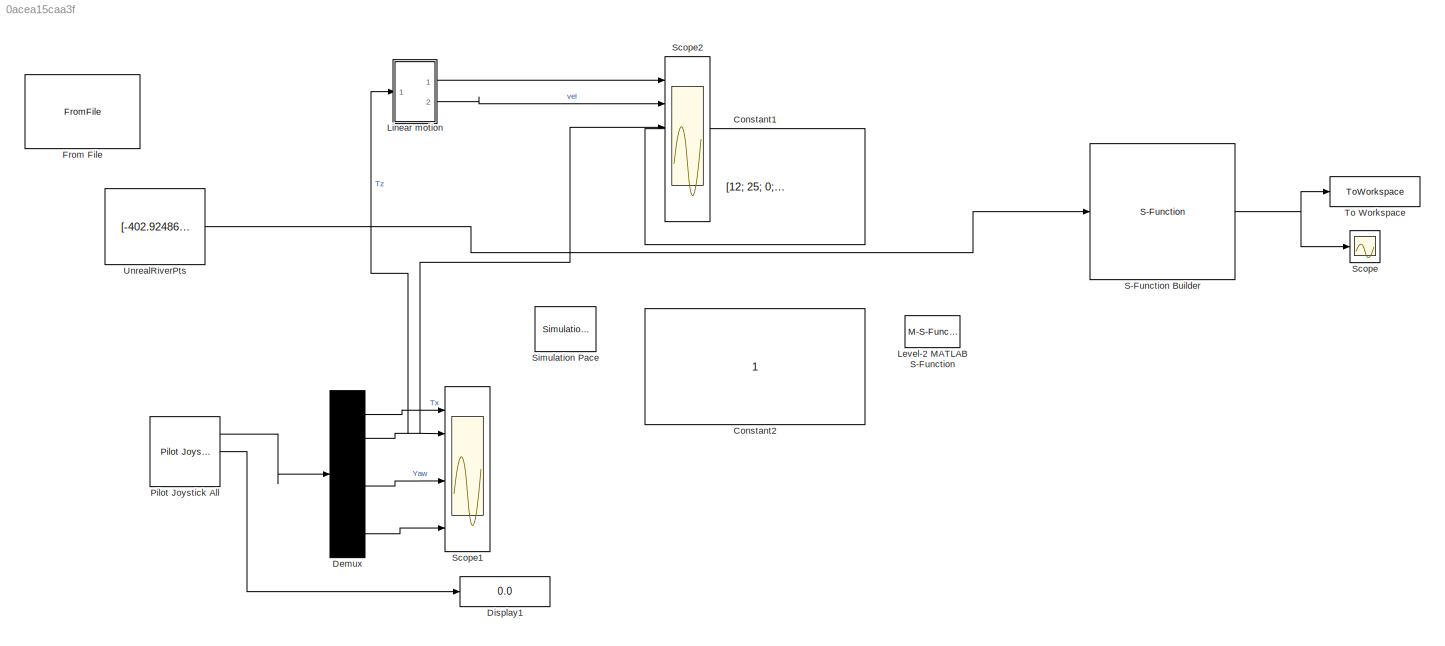
MODEL slx_0acea15caa3f
KIND model
CONFIG AbsTol = auto
CONFIG EnableMultiTasking = off
CONFIG FixedStep = auto
CONFIG MaxStep = auto
CONFIG MinStep = auto
CONFIG RelTol = 1e-3
CONFIG SampleTimeConstraint = Unconstrained
CONFIG SolverName = VariableStepAuto
CONFIG StartTime = 0.0
CONFIG StopTime = 10
BLOCK [Constant] Constant1
  Commented = on
  OutDataTypeStr = int32
  SampleTime = 1
  Value = [12; 25; 0; 0]
BLOCK [Constant] Constant2
  Commented = on
  OutDataTypeStr = int32
  SampleTime = 1
BLOCK [Demux] Demux
  Commented = on
  Outputs = 6
  Ports = [1, 6]
BLOCK [Display] Display1
  Commented = on
  Decimation = 1
  Ports = [1]
BLOCK [FromFile] From File
  Commented = on
  FileName = SimEnvironment.mat
  SampleTime = 0
BLOCK [M-S-Function] Level-2 MATLAB S-Function
  Ports = [1, 1]
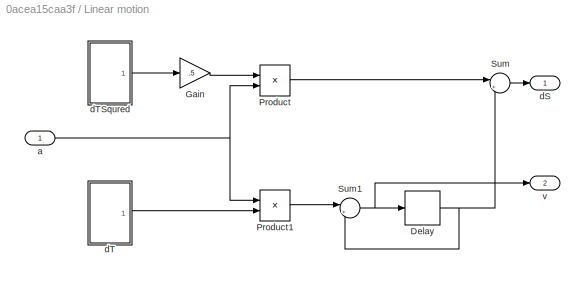
BLOCK [SubSystem] Linear motion
  Commented = on
  Ports = [1, 2]
  RequestExecContextInheritance = off
BLOCK [Delay] Linear motion/Delay
  DelayLength = 1
  InitialCondition = 0
  InputPortMap = u0
  Ports = [1, 1]
BLOCK [Gain] Linear motion/Gain
  Gain = .5
BLOCK [Product] Linear motion/Product
  Ports = [2, 1]
BLOCK [Product] Linear motion/Product1
  Ports = [2, 1]
BLOCK [Sum] Linear motion/Sum
  Inputs = |++
  Ports = [2, 1]
BLOCK [Sum] Linear motion/Sum1
  Inputs = |++
  Ports = [2, 1]
BLOCK [Inport] Linear motion/a
BLOCK [Outport] Linear motion/dS
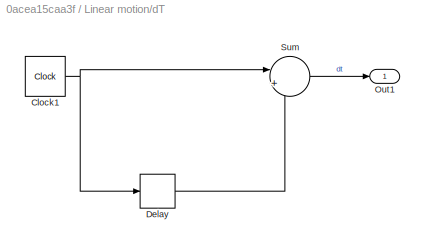
BLOCK [SubSystem] Linear motion/dT
  Ports = [0, 1]
  RequestExecContextInheritance = off
BLOCK [Clock] Linear motion/dT/Clock1
BLOCK [Delay] Linear motion/dT/Delay
  DelayLength = 1
  InitialCondition = 0
  InputPortMap = u0
  Ports = [1, 1]
BLOCK [Outport] Linear motion/dT/Out1
BLOCK [Sum] Linear motion/dT/Sum
  Inputs = |+-
  Ports = [2, 1]
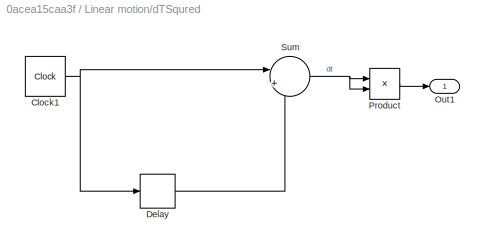
BLOCK [SubSystem] Linear motion/dTSqured
  Ports = [0, 1]
  RequestExecContextInheritance = off
BLOCK [Clock] Linear motion/dTSqured/Clock1
BLOCK [Delay] Linear motion/dTSqured/Delay
  DelayLength = 1
  InitialCondition = 0
  InputPortMap = u0
  Ports = [1, 1]
BLOCK [Outport] Linear motion/dTSqured/Out1
BLOCK [Product] Linear motion/dTSqured/Product
  Ports = [2, 1]
BLOCK [Sum] Linear motion/dTSqured/Sum
  Inputs = |+-
  Ports = [2, 1]
BLOCK [Outport] Linear motion/v
  Port = 2
BLOCK [Reference] Pilot Joystick All  REF=aerolibanimutils/Pilot Joystick
  Commented = on
  Ports = [0, 3]
  SourceBlock = aerolibanimutils/Pilot Joystick
  SourceProductBaseCode = AE
  SourceType = PilotJoystick
BLOCK [S-Function] S-Function Builder
  CopyFcn = set_param(gcbh,'LinkStatus','none')
  EnableBusSupport = off
  FunctionName = TimeTrigger
  OpenFcn = sfunctionwizard(gcbh)
  Ports = [1, 1]
  SFcnIsStateOwnerBlock = off
  SFunctionDeploymentMode = off
  SFunctionModules = TimeTrigger_wrapper
BLOCK [Scope] Scope
  Floating = off
  NumInputPorts = 1
  Ports = [1]
  ScopeSpecificationString = Simulink.scopes.TimeScopeBlockCfg('CurrentConfiguration', extmgr.ConfigurationSet(extmgr.Configuration('Core','General UI',true),extmgr.Configuration('Core','Source UI',true),extmgr.Configuration('Sources','WiredSimulink',true,'DataLoggingVariableName','ScopeData1'),extmgr.Configuration('Visuals','Time Domain',true,'SerializedDisplays',{struct('MinYLimReal','0.85557','MaxYLimReal','1.20828','YLabe...<+1493ch>
BLOCK [Scope] Scope1
  Commented = on
  Floating = off
  NumInputPorts = 6
  Ports = [6]
  ScopeSpecificationString = Simulink.scopes.TimeScopeBlockCfg('CurrentConfiguration', extmgr.ConfigurationSet(extmgr.Configuration('Core','General UI',true),extmgr.Configuration('Core','Source UI',true),extmgr.Configuration('Sources','WiredSimulink',true),extmgr.Configuration('Visuals','Time Domain',true,'SerializedDisplays',{struct('MinYLimReal','-1.25','MaxYLimReal','1.25003','YLabelReal','','MinYLimMag','0.00000','MaxYLim...<+4979ch>
BLOCK [Scope] Scope2
  Commented = on
  Floating = off
  NumInputPorts = 6
  Ports = [6]
  ScopeSpecificationString = Simulink.scopes.TimeScopeBlockCfg('CurrentConfiguration', extmgr.ConfigurationSet(extmgr.Configuration('Core','General UI',true),extmgr.Configuration('Core','Source UI',true),extmgr.Configuration('Sources','WiredSimulink',true,'DataLoggingVariableName','ScopeData1'),extmgr.Configuration('Visuals','Time Domain',true,'SerializedDisplays',{struct('MinYLimReal','-0.19655','MaxYLimReal','1.76896','YLab...<+5172ch>
BLOCK [Reference] Simulation Pace  REF=aerolibanimutils/Simulation Pace
  AttributesFormatString = %<SleepMode>\n%<SimulationPace> sec/sec
  Commented = on
  Ports = []
  SourceBlock = aerolibanimutils/Simulation Pace
  SourceProductBaseCode = AE
  SourceType = Simulation Pace
BLOCK [ToWorkspace] To Workspace
  FixptAsFi = on
  MaxDataPoints = inf
  Ports = [1]
  SampleTime = -1
  SaveFormat = Timeseries
  VariableName = simout
BLOCK [Constant] UnrealRiverPts
  Value = [-402.924868793743	267.174066483351;\n-386.279322333391	267.212395336407;\n-403.147892748961	241.736224883520;\n-386.323394922344	241.806153769400;\n-361.163861288494	241.910726171762;\n-403.284023119093	226.209360117309;\n-386.350295583676	226.298902747316;\n-361.027921515931	226.432803093080;\n-335.798946536105	226.566209560579;\n-386.368423952853	215.848558498968;\n-335.598412435239	216.155732951668;\n-32...<+1980ch>
LINE Demux:1 -> Scope1:1
NET Demux:2 -> Linear motion:1, Scope1:2, Scope2:3
LINE Demux:4 -> Scope1:4
LINE Demux:6 -> Scope1:6
NET Linear motion/Delay:1 -> Linear motion/Sum1:2, Linear motion/Sum:2
LINE Linear motion/Gain:1 -> Linear motion/Product:1
LINE Linear motion/Product1:1 -> Linear motion/Sum1:1
LINE Linear motion/Product:1 -> Linear motion/Sum:1
NET Linear motion/Sum1:1 -> Linear motion/Delay:1, Linear motion/v:1
LINE Linear motion/Sum:1 -> Linear motion/dS:1
NET Linear motion/a:1 -> Linear motion/Product1:1, Linear motion/Product:2
NET Linear motion/dT/Clock1:1 -> Linear motion/dT/Delay:1, Linear motion/dT/Sum:1
LINE Linear motion/dT/Delay:1 -> Linear motion/dT/Sum:2
LINE Linear motion/dT/Sum:1 -> Linear motion/dT/Out1:1
LINE Linear motion/dT:1 -> Linear motion/Product1:2
NET Linear motion/dTSqured/Clock1:1 -> Linear motion/dTSqured/Delay:1, Linear motion/dTSqured/Sum:1
LINE Linear motion/dTSqured/Delay:1 -> Linear motion/dTSqured/Sum:2
LINE Linear motion/dTSqured/Product:1 -> Linear motion/dTSqured/Out1:1
NET Linear motion/dTSqured/Sum:1 -> Linear motion/dTSqured/Product:1, Linear motion/dTSqured/Product:2
LINE Linear motion/dTSqured:1 -> Linear motion/Gain:1
LINE Linear motion:1 -> Scope2:1
LINE Linear motion:2 -> Scope2:2
LINE Pilot Joystick All:1 -> Demux:1
LINE Pilot Joystick All:2 -> Display1:1
NET S-Function Builder:1 -> Scope:1, To Workspace:1
LINE UnrealRiverPts:1 -> S-Function Builder:1
note: NET lines group one-source signal fan-out (src -> all destinations, sorted); 1:1 wires keep LINE
